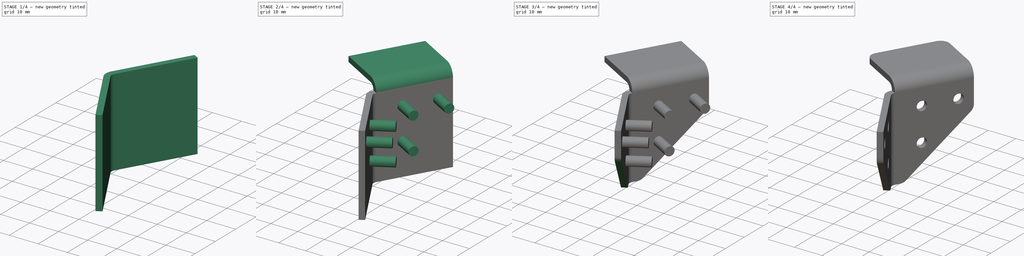
[diagram: build sequence overview — one tinted view per stage of 4, left to right]
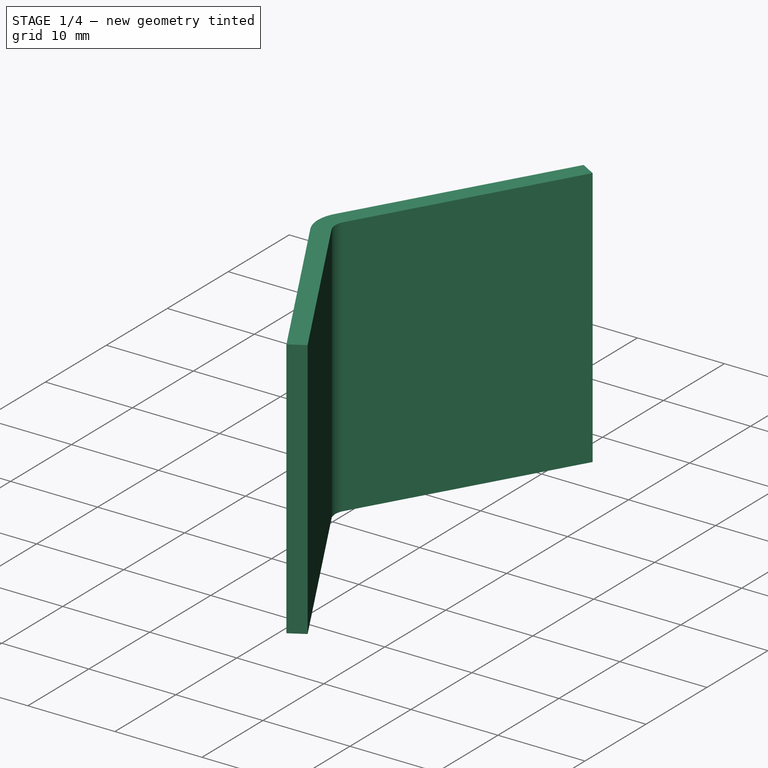
[diagram: stage 1 of 4 — iso view after this stage's code; geometry added in this stage tinted green]
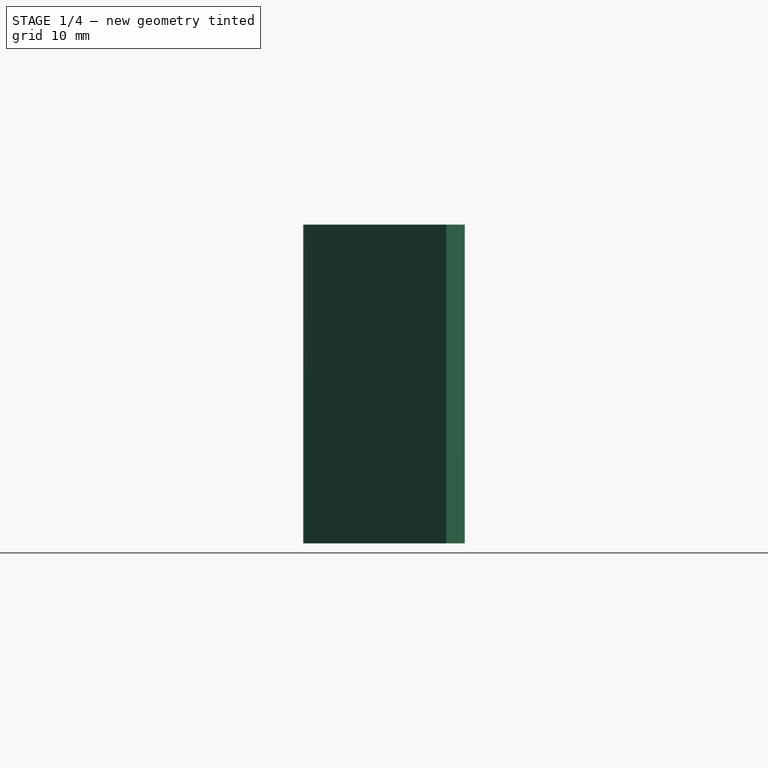
[diagram: stage 1 of 4 — front view after this stage's code; geometry added in this stage tinted green]
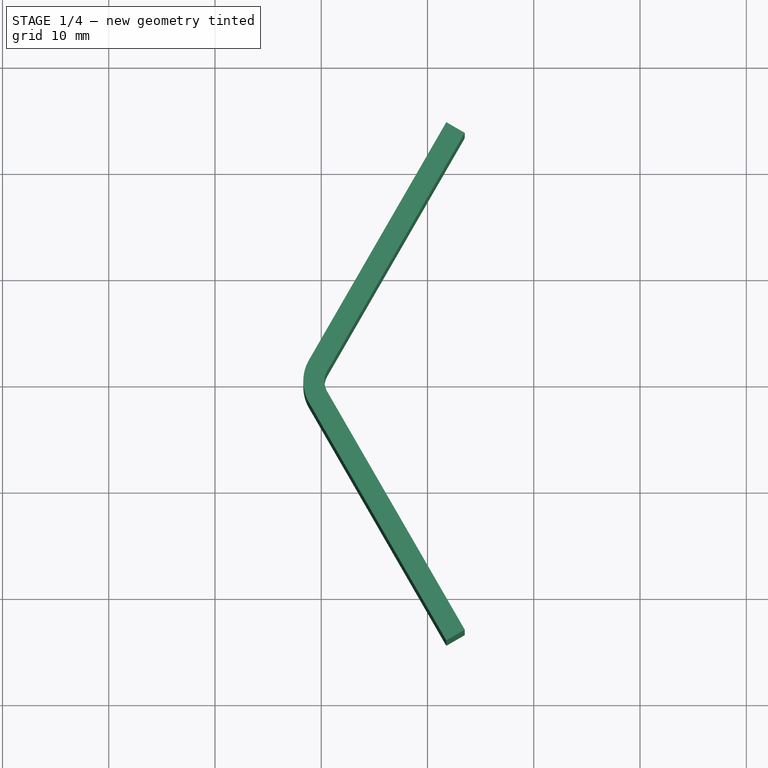
[diagram: stage 1 of 4 — top view after this stage's code; geometry added in this stage tinted green]
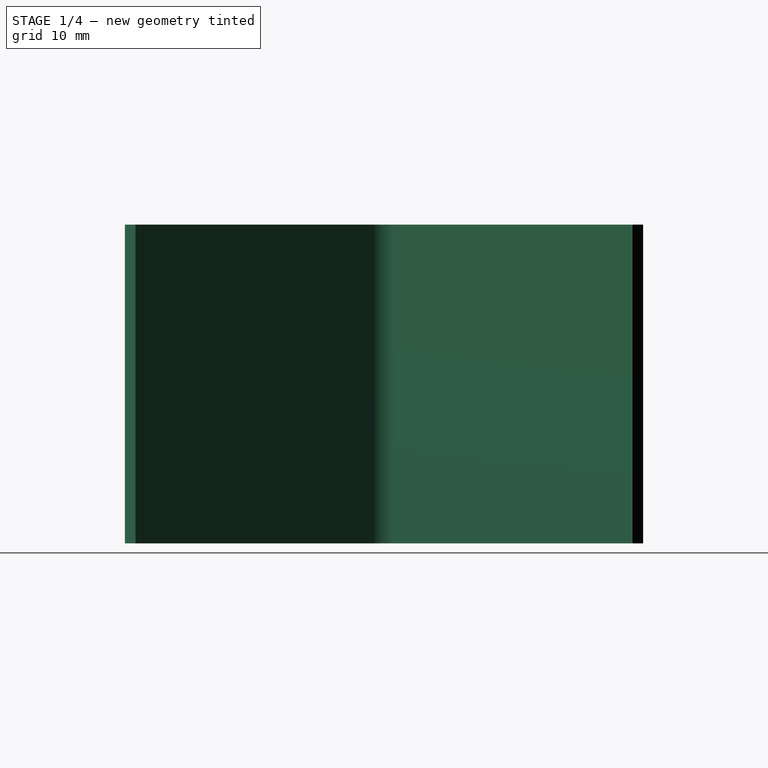
[diagram: stage 1 of 4 — right view after this stage's code; geometry added in this stage tinted green]
FCSTD DOCUMENT  (FreeCAD 1.1R38827 (Git))
Label: composit_stand3_top_amplifier_model
License: All rights reserved
LicenseURL: http://en.wikipedia.org/wiki/All_rights_reserved
objects: PartDesign::SubShapeBinder×4, PartDesign::Pocket×4, Part::Mirroring×2, Part::FeaturePython×2, PartDesign::FeaturePython×2, Sketcher::SketchObject×2, PartDesign::Body×2, App::Link×1, PartDesign::CoordinateSystem×1, Part::Cylinder×1, Part::MultiFuse×1, PartDesign::Boolean×1, Part::Feature×1
note: 36 computed .brp shape members not serialized (recipe doc carries the construction recipe); baked Part::Feature solids carry a one-line shape summary decoded from their .brp
EXTERNAL_REF file=composit_stand3_top_amplifier_main.FCStd obj=Sketch
EXTERNAL_REF file=composit_stand3_top_amplifier_main.FCStd obj=Sketch001
EXTERNAL_REF file=composit_stand3_top_amplifier_main.FCStd obj=Join001

FEATURE [PartDesign::SubShapeBinder] Binder
  BindCopyOnChange = 0
  BindMode = 0
  ClaimChildren = false
  Fuse = false
  MakeFace = true
  OffsetFill = false
  OffsetIntersection = false
  OffsetJoinType = 0
  OffsetOpenResult = false
  PartialLoad = false
  Relative = true
  Support = -> [<external composit_stand3_top_amplifier_main.FCStd>#Sketch]
  _Version = 2
FEATURE [Part::Mirroring] Part__Mirroring  label="Binder (Mirror #1)"
  Base = (0,0,0)
  Normal = (0,1,0)
  Source = -> Binder
FEATURE [Part::FeaturePython] Connect  # WARN: FeaturePython — macro-defined, semantics opaque (R4)
  Objects = -> [Binder,Part__Mirroring]
  Tolerance = 0
FEATURE [PartDesign::SubShapeBinder] Binder001
  BindCopyOnChange = 0
  BindMode = 0
  ClaimChildren = true
  Context = -> Body [Binder001.]
  Fuse = false
  MakeFace = true
  OffsetFill = false
  OffsetIntersection = false
  OffsetJoinType = 0
  OffsetOpenResult = false
  PartialLoad = false
  Relative = false
  Support = -> [Connect]
  _Version = 2
FEATURE [PartDesign::FeaturePython] BaseBend  # WARN: FeaturePython — macro-defined, semantics opaque (R4)
  BendSide = 1
  BendSketch = -> Binder001
  MidPlane = false
  Reverse = true
  Suppressed = false
  length = 34
  radius = 2
  thickness = 2
FEATURE [Sketcher::SketchObject] Sketch
  ArcFitTolerance = 0
  AttachmentSupport = -> [XY_Plane]
  FullyConstrained = false
  MakeInternals = false
  MapMode = 5
  sketch-geometry (5):
    g0: LineSegment StartX=35.6821 StartY=-39.7187 StartZ=0 EndX=35.6821 EndY=39.7187 EndZ=0
    g1: LineSegment StartX=35.6821 StartY=39.7187 StartZ=0 EndX=-6.62185 EndY=39.7187 EndZ=0
    g2: LineSegment StartX=-6.62185 StartY=39.7187 StartZ=0 EndX=-6.62185 EndY=-39.7187 EndZ=0
    g3: LineSegment StartX=-6.62185 StartY=-39.7187 StartZ=0 EndX=35.6821 EndY=-39.7187 EndZ=0
    g4: GeomPoint [constr] X=14.5301 Y=0 Z=0
  constraints (10):
    c: Coincident(g0,g1)
    c: Coincident(g1,g2)
    c: Coincident(g2,g3)
    c: Coincident(g3,g0)
    c: Vertical(g0)
    c: Vertical(g2)
    c: Horizontal(g1)
    c: Horizontal(g3)
    c: Symmetric(g2,g0,g4)
    c: PointOnObject(g4,g-1)
FEATURE [PartDesign::Pocket] Pocket
  BaseFeature = -> BaseBend
  Direction = (0,0,-1)
  Length = 4
  Length2 = 5
  Profile = -> Sketch
  ReferenceAxis = -> Sketch [N_Axis]
  Suppressed = false
  Type = 0
  expr: Length = <<BaseBend>>.radius + <<BaseBend>>.thickness
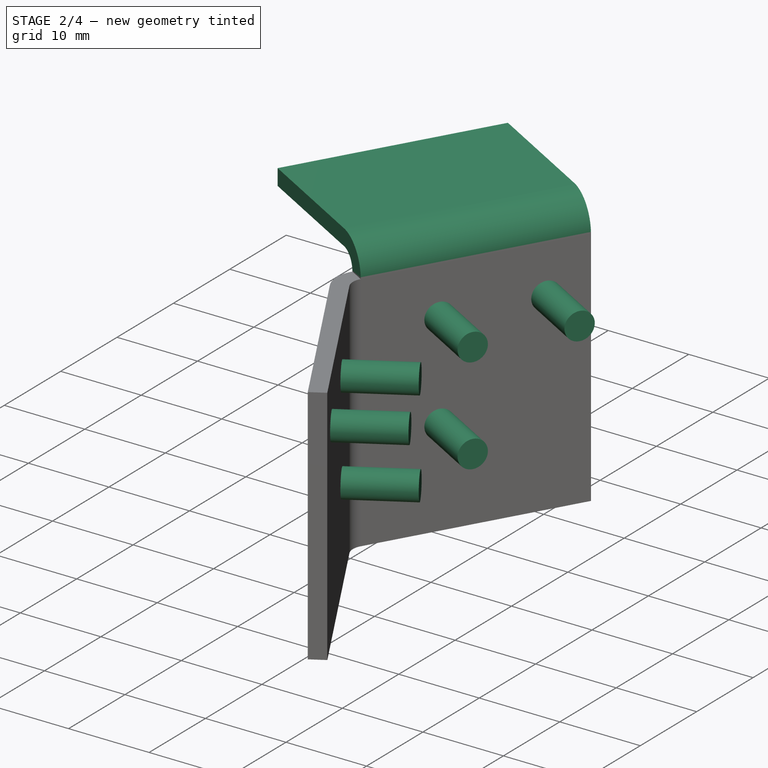
[diagram: stage 2 of 4 — iso view after this stage's code; geometry added in this stage tinted green]
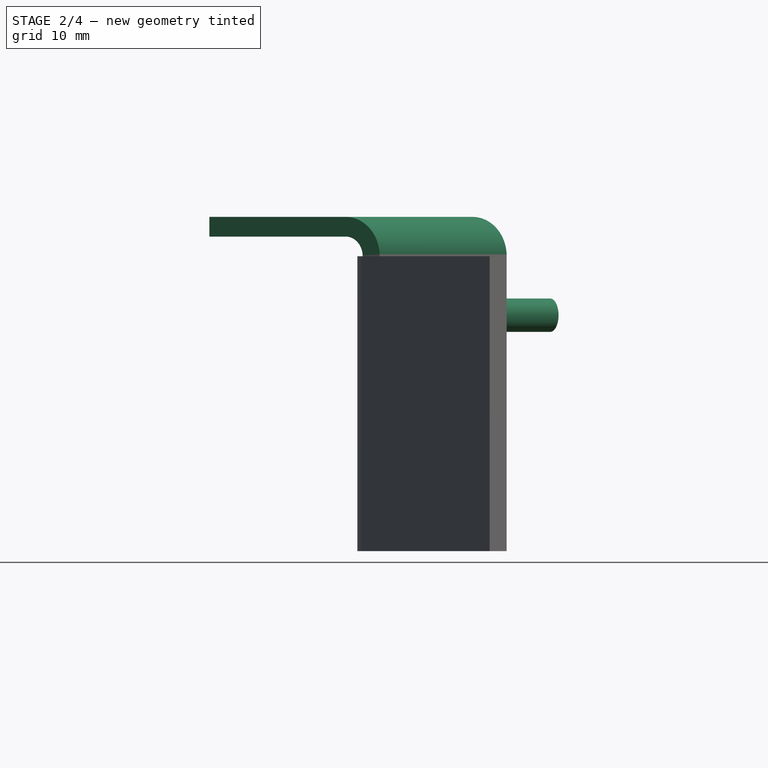
[diagram: stage 2 of 4 — front view after this stage's code; geometry added in this stage tinted green]
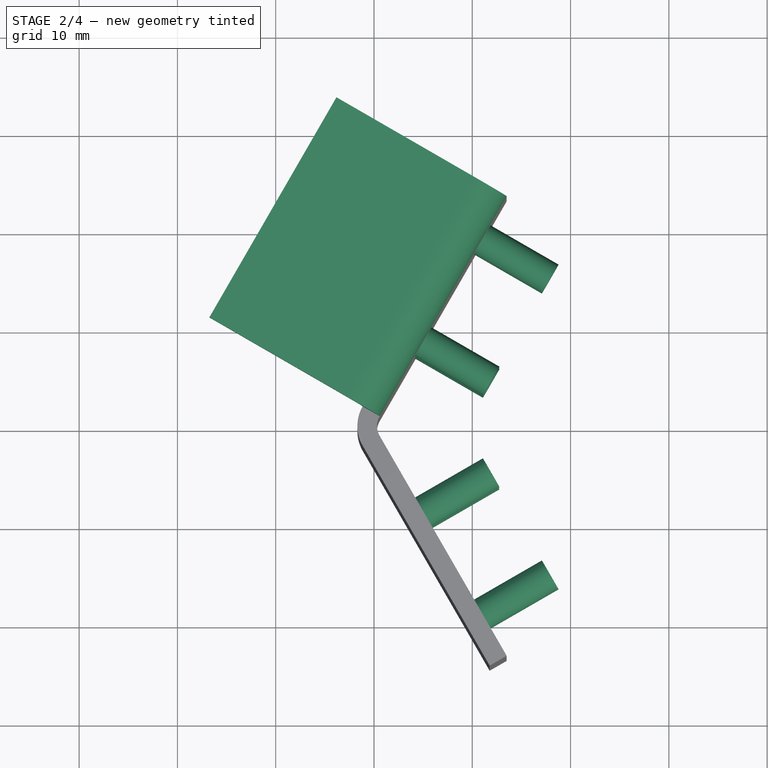
[diagram: stage 2 of 4 — top view after this stage's code; geometry added in this stage tinted green]
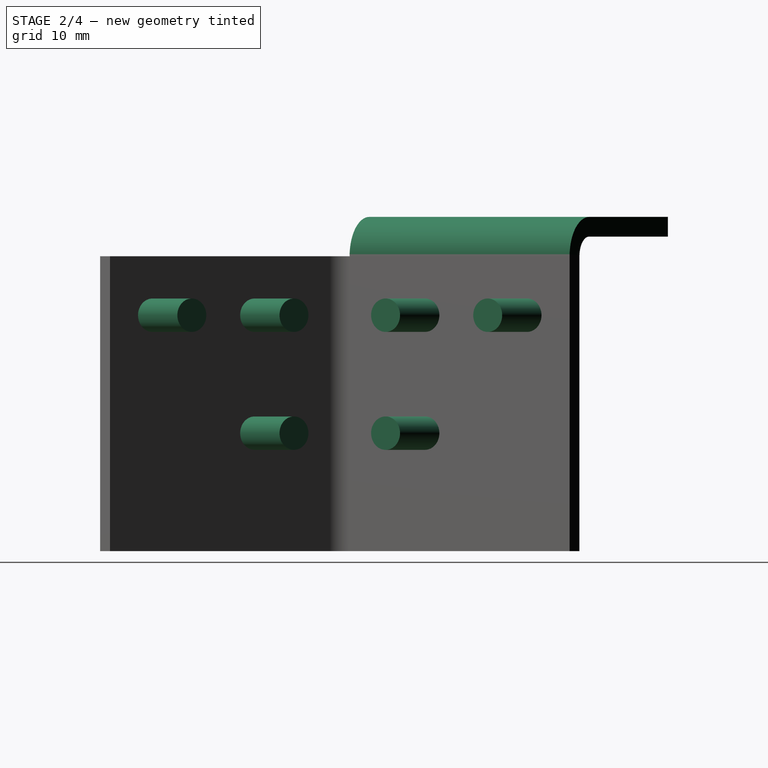
[diagram: stage 2 of 4 — right view after this stage's code; geometry added in this stage tinted green]
FEATURE [PartDesign::FeaturePython] Bend  # WARN: FeaturePython — macro-defined, semantics opaque (R4)
  AutoMiter = true
  BaseFeature = -> Pocket
  BendType = 0
  LengthList = [20]
  LengthSpec = 1
  NonperforationMaxLength = 5
  Perforate = false
  PerforationAngle = 0
  PerforationInitialLength = 5
  PerforationMaxLength = 5
  ReliefFactor = 0.7
  Suppressed = false
  UseReliefFactor = false
  angle = 90
  baseObject = -> Pocket [Edge3]
  bendAList = [90]
  extend1 = 0
  extend2 = 0
  gap1 = 0
  gap2 = 0
  invert = false
  kfactor = 0.5
  length = 20
  maxExtendDist = 5
  minGap = 0.2
  minReliefGap = 1
  miterangle1 = 0
  miterangle2 = 0
  offset = 0
  radius = 2
  reliefType = 0
  reliefd = 1
  reliefw = 0.8
  sketchflip = false
  sketchinvert = false
  unfold = false
  expr: radius = BaseBend.radius
FEATURE [App::Link] Link  label="side_holes"
  LinkedObject = -> <external composit_stand3_top_amplifier_main.FCStd>#Join001
FEATURE [PartDesign::CoordinateSystem] Local_CS
  AttacherType = Attacher::AttachEngine3D
  AttachmentSupport = -> [XY_Plane]
  MapMode = 5
FEATURE [Part::Cylinder] Cylinder
  Angle = 360
  AttacherType = Attacher::AttachEngine3D
  FirstAngle = 0
  Height = 10
  Placement = pos=(0,0,0) rot=(1,0,0;3.14159rad)
  Radius = 1.7
  SecondAngle = 0
FEATURE [Part::FeaturePython] Populate  label="Populate side_holes with Cylinder"  # WARN: FeaturePython — macro-defined, semantics opaque (R4)
  Copying = 0
  ExposePlacement = false
  MarkerShape = 1
  MarkerSize = 0
  NumElements = 0
  Object = -> Cylinder
  OutputCompounding = 1
  PlacementsTo = -> Link
  Referencing = 0
  Type = lattice2PopulateCopies.LatticePopulateCopies
  isLattice = 0
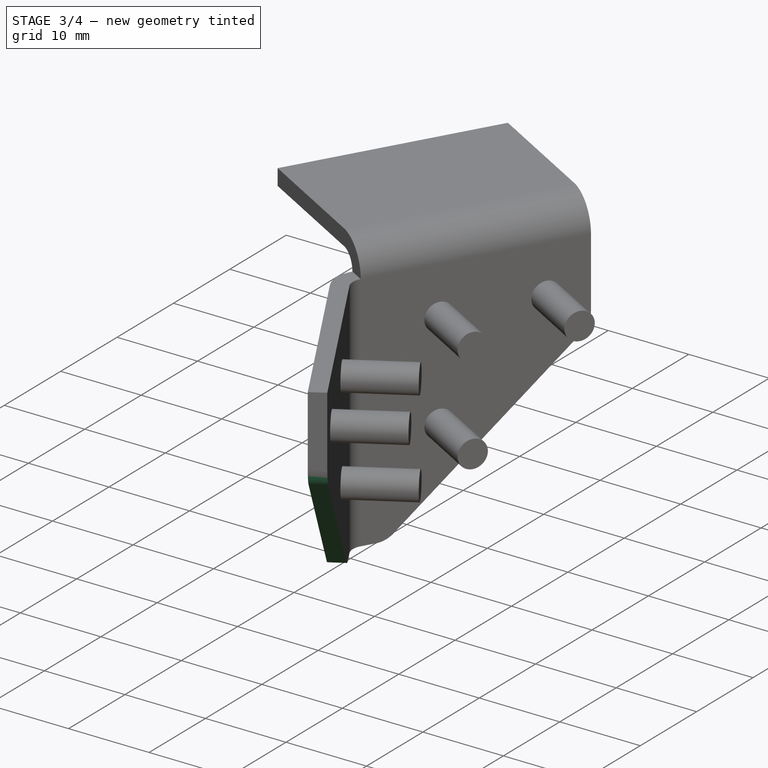
[diagram: stage 3 of 4 — iso view after this stage's code; geometry added in this stage tinted green]
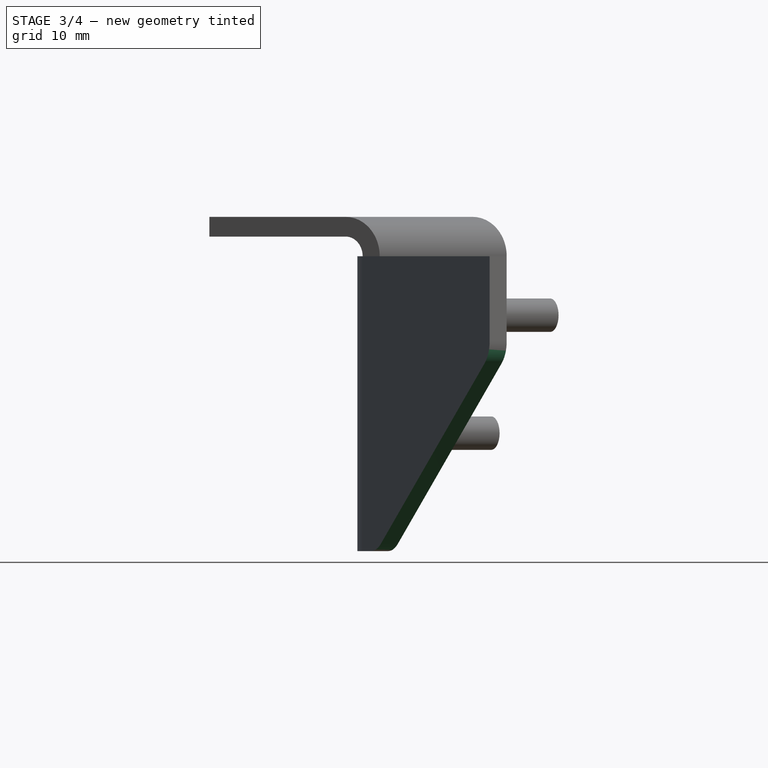
[diagram: stage 3 of 4 — front view after this stage's code; geometry added in this stage tinted green]
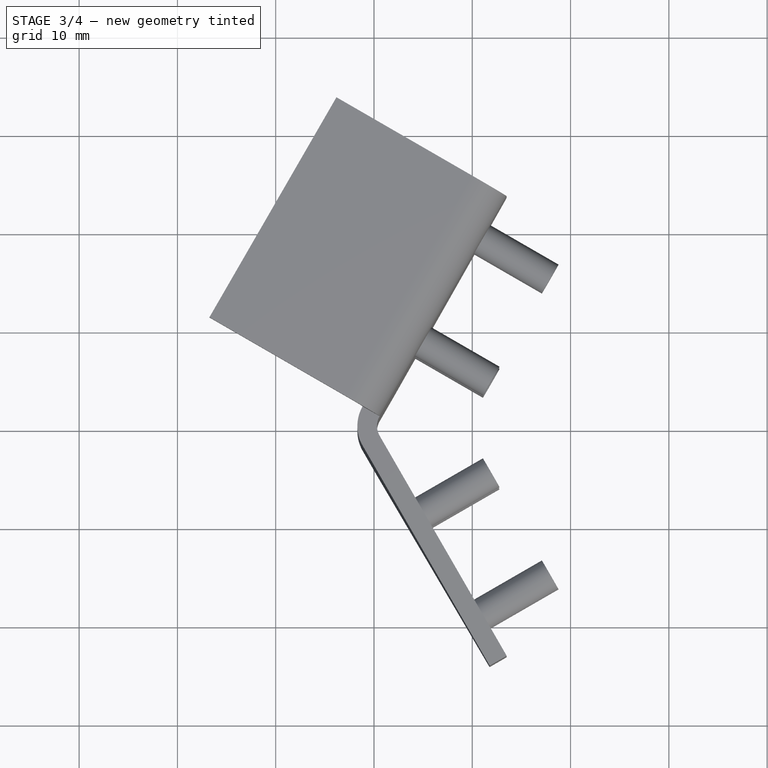
[diagram: stage 3 of 4 — top view after this stage's code; geometry added in this stage tinted green]
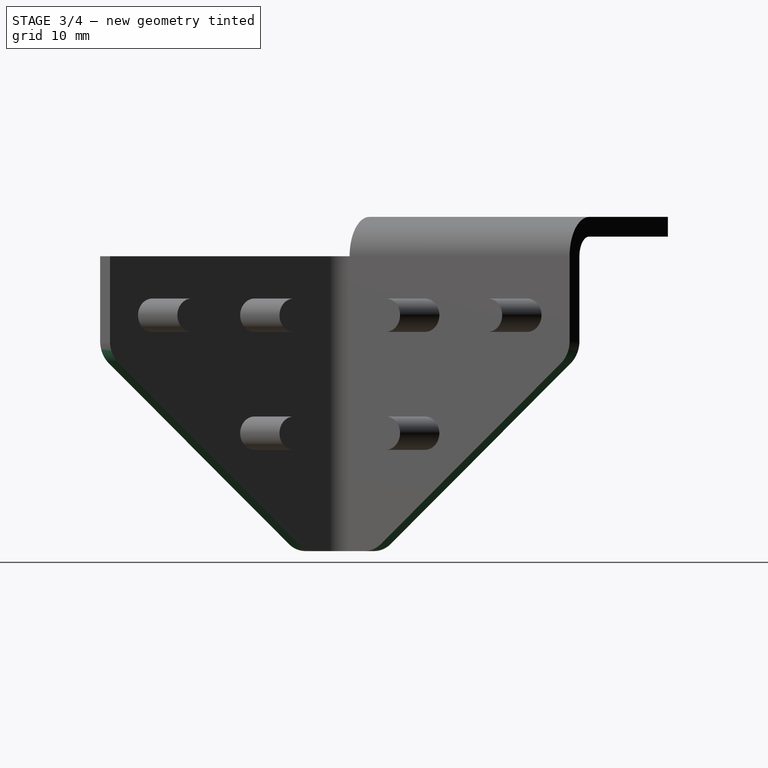
[diagram: stage 3 of 4 — right view after this stage's code; geometry added in this stage tinted green]
FEATURE [PartDesign::SubShapeBinder] Binder002
  BindCopyOnChange = 0
  BindMode = 0
  ClaimChildren = true
  Context = -> Body [Binder002.]
  Fuse = false
  MakeFace = true
  OffsetFill = false
  OffsetIntersection = false
  OffsetJoinType = 0
  OffsetOpenResult = false
  PartialLoad = false
  Relative = true
  Support = -> [<external composit_stand3_top_amplifier_main.FCStd>#Sketch001]
  _Version = 2
  expr: Support = composit_stand3_top_amplifier_main#Sketch001._self
FEATURE [PartDesign::Pocket] Pocket001
  BaseFeature = -> Bend
  Direction = (-0.866025,0.5,0)
  Length = 5
  Length2 = 5
  Profile = -> Binder002
  Suppressed = false
  Type = 0
FEATURE [Part::Mirroring] Part__Mirroring001  label="Binder002 (Mirror #2)"
  Base = (0,0,0)
  Normal = (0,1,0)
  Source = -> Binder002
FEATURE [PartDesign::SubShapeBinder] Binder003
  BindCopyOnChange = 0
  BindMode = 0
  ClaimChildren = false
  Context = -> Body [Binder003.]
  Fuse = false
  MakeFace = true
  OffsetFill = false
  OffsetIntersection = false
  OffsetJoinType = 0
  OffsetOpenResult = false
  PartialLoad = false
  Relative = true
  Support = -> [Part__Mirroring001]
  _Version = 2
FEATURE [PartDesign::Pocket] Pocket002
  BaseFeature = -> Pocket001
  Direction = (0.866025,0.5,0)
  Length = 5
  Length2 = 5
  Profile = -> Binder003
  Reversed = true
  Suppressed = false
  Type = 0
FEATURE [PartDesign::Body] Body001
  AllowCompound = false
  Origin = -> Origin001
FEATURE [Part::MultiFuse] Fusion
  Shapes = -> [Populate]
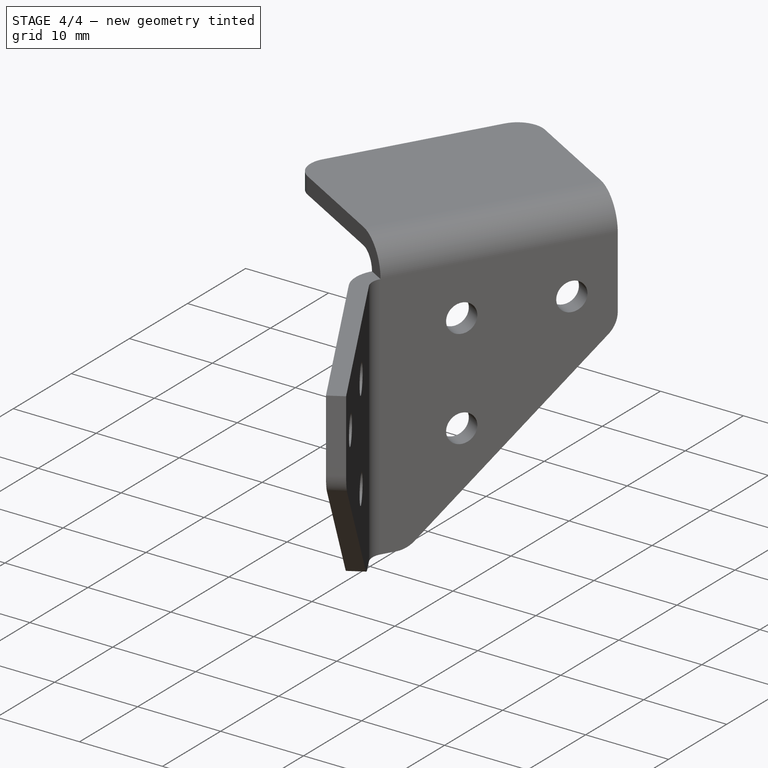
[diagram: stage 4 of 4 — iso view after this stage's code; geometry added in this stage tinted green]
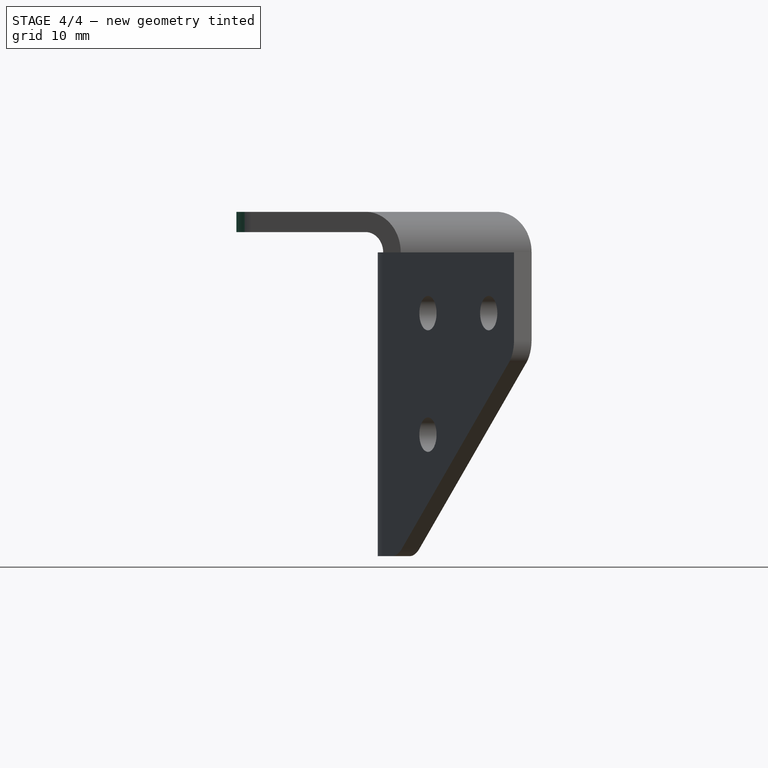
[diagram: stage 4 of 4 — front view after this stage's code; geometry added in this stage tinted green]
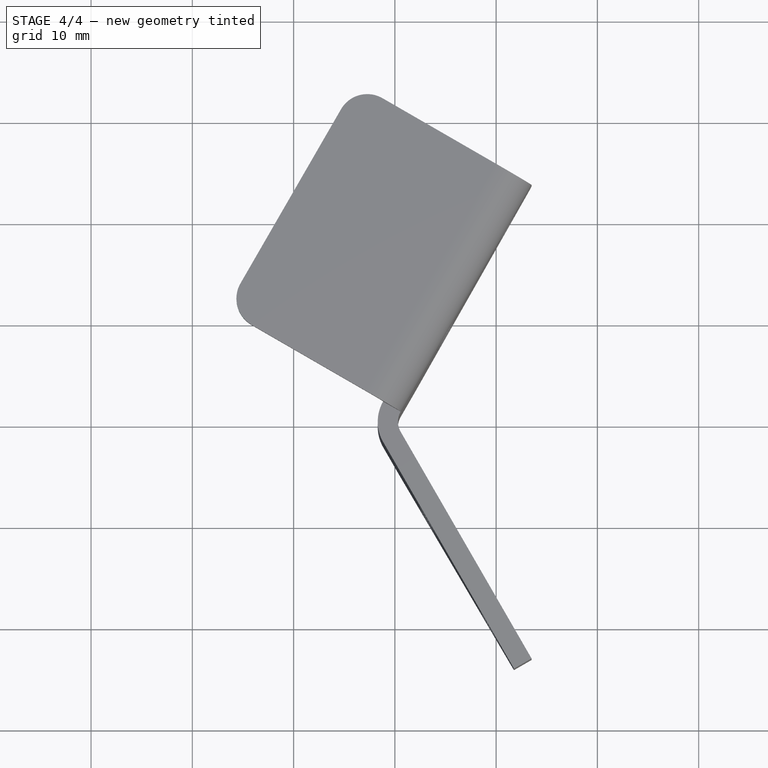
[diagram: stage 4 of 4 — top view after this stage's code; geometry added in this stage tinted green]
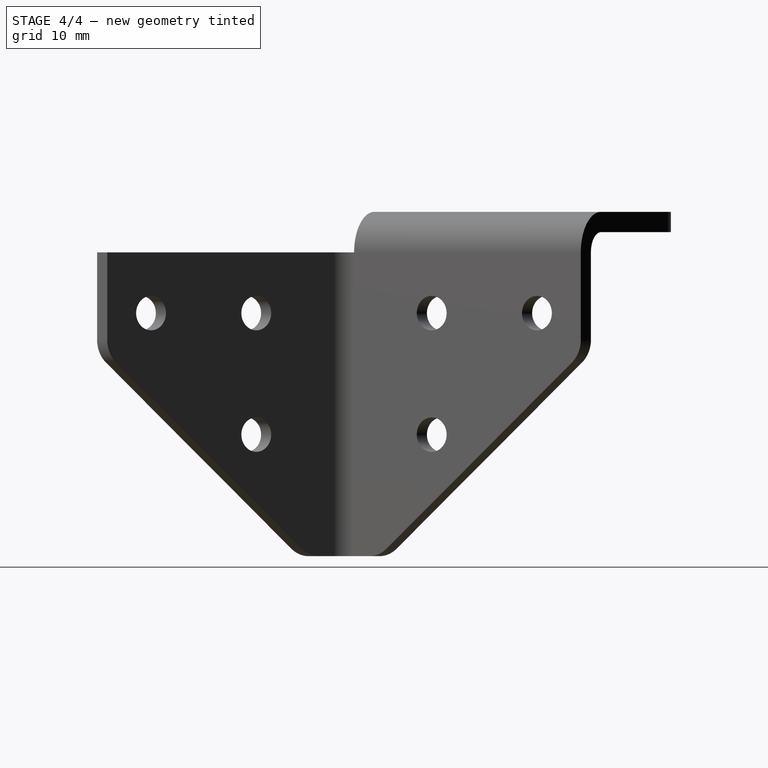
[diagram: stage 4 of 4 — right view after this stage's code; geometry added in this stage tinted green]
FEATURE [PartDesign::Boolean] Boolean
  BaseFeature = -> Pocket002
  Group = -> [Fusion]
  Suppressed = false
  Type = 1
  UsePlacement = true
FEATURE [Part::Feature] Body171  label="top_amplifier_cornrer_material_0.50ansi002"
  Placement = pos=(0,0,-34) rot=(0,0,1;-1.5708rad)
  shape: bbox 29.62 x 57.09 x 34 mm, 35 faces (baked)
FEATURE [Sketcher::SketchObject] Sketch001
  ArcFitTolerance = 1e-06
  AttachmentOffset = pos=(0,0,0) rot=(0,0,1;1.0472rad)
  AttachmentSupport = -> [XY_Plane]
  FullyConstrained = true
  MakeInternals = false
  MapMode = 5
  Placement = pos=(0,0,0) rot=(0,0,1;1.0472rad)
  expr: Constraints[16] = <<Bend>>.length
  expr: Constraints[20] = <<composit_stand3_top_amplifier_main>>#<<side_Sketch>>.Constraints.length
  expr: Constraints[4] = <<BaseBend>>.radius
  sketch-geometry (8):
    g0: ArcOfCircle [constr] CenterX=1.1547 CenterY=-2 CenterZ=0 NormalX=0 NormalY=0 NormalZ=1 AngleXU=0 Radius=2 StartAngle=1.5708 EndAngle=2.61799
    g1: LineSegment [constr] StartX=-0.57735 StartY=-1 StartZ=0 EndX=0 EndY=-1e-16 EndZ=0
    g2: ArcOfCircle CenterX=4.1547 CenterY=17 CenterZ=0 NormalX=0 NormalY=0 NormalZ=1 AngleXU=0 Radius=3 StartAngle=1.5708 EndAngle=3.14159
    g3: ArcOfCircle CenterX=24 CenterY=17 CenterZ=0 NormalX=0 NormalY=0 NormalZ=1 AngleXU=0 Radius=3 StartAngle=0 EndAngle=1.5708
    g4: LineSegment StartX=1.1547 StartY=17 StartZ=0 EndX=1.1547 EndY=20 EndZ=0
    g5: LineSegment StartX=1.1547 StartY=20 StartZ=0 EndX=4.1547 EndY=20 EndZ=0
    g6: LineSegment StartX=24 StartY=20 StartZ=0 EndX=27 EndY=20 EndZ=0
    g7: LineSegment StartX=27 StartY=20 StartZ=0 EndX=27 EndY=17 EndZ=0
  constraints (21):
    c: Coincident(g1,g-1)
    c: Tangent(g1,g0) = 1.5708
    c: Tangent(g0,g-1) = 1.5708
    c: Angle(g1) = 1.0472
    c: Radius(g0) = 2
    c: Coincident(g4,g5)
    c: Coincident(g6,g7)
    c: Tangent(g2,g4) = 1.5708
    c: Tangent(g5,g2) = 1.5708
    c: Tangent(g7,g3) = 1.5708
    c: Tangent(g3,g6) = 1.5708
    c: Vertical(g7)
    c: Horizontal(g6)
    c: Vertical(g4)
    c: Horizontal(g5)
    c: Vertical(g0,g4)
    c: DistanceY(g4) = 20
    c: Equal(g2,g3)
    c: Radius(g2) = 3
    c: Horizontal(g6,g4)
    c: DistanceX(g6) = 27
FEATURE [PartDesign::Pocket] Pocket003
  BaseFeature = -> Boolean
  Direction = (0,0,-1)
  Length = 5
  Length2 = 5
  Profile = -> Sketch001
  ReferenceAxis = -> Sketch001 [N_Axis]
  Suppressed = false
  Type = 0
FEATURE [PartDesign::Body] Body  label="top_amplifier"
  AllowCompound = false
  Group = -> [Binder001,BaseBend,Sketch,Pocket,Bend,Binder002,Pocket001,Binder003,Pocket002,Local_CS,Boolean,Sketch001,Pocket003]
  Origin = -> Origin
  Tip = -> Pocket003
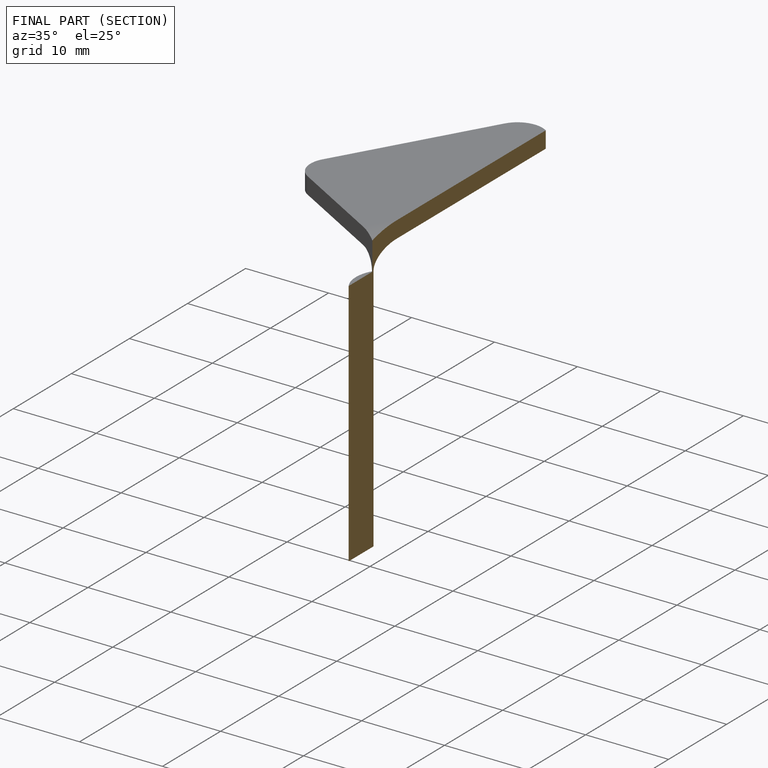
[diagram: finished part — half-section view (interior)]
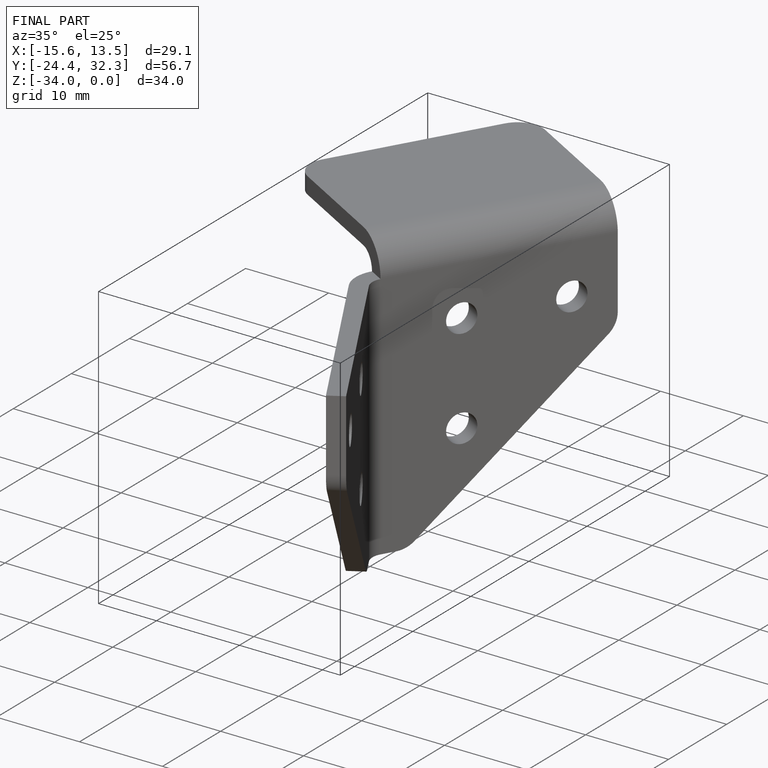
[diagram: finished part — iso view with bounding-box wireframe]
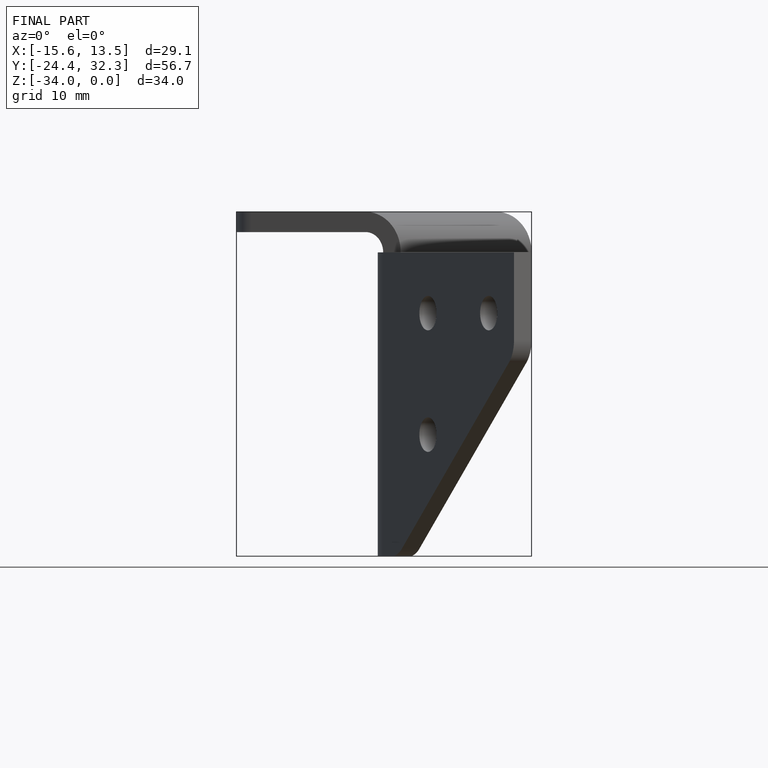
[diagram: finished part — front view with bounding-box wireframe]
